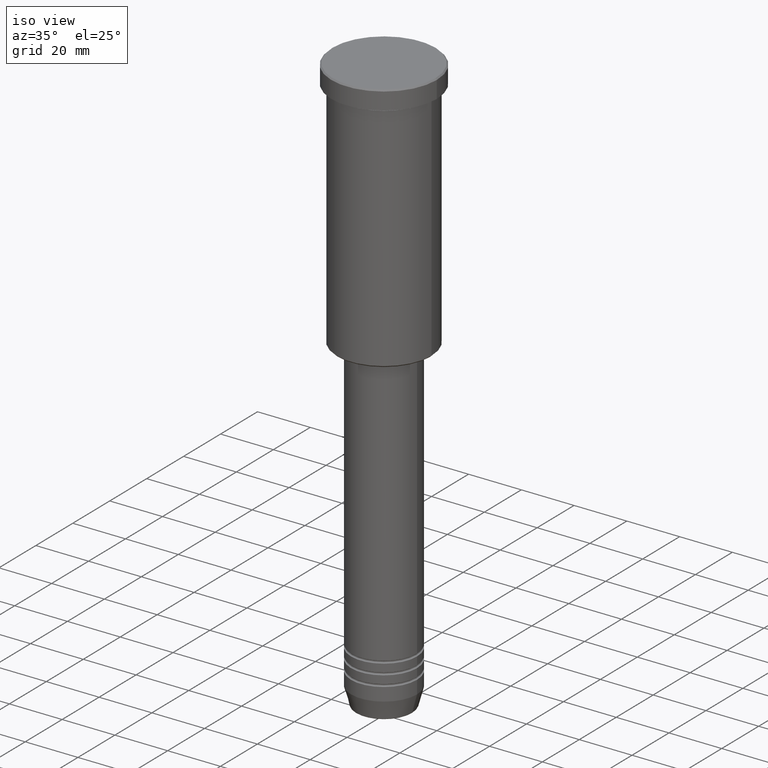
[diagram: clean part render]
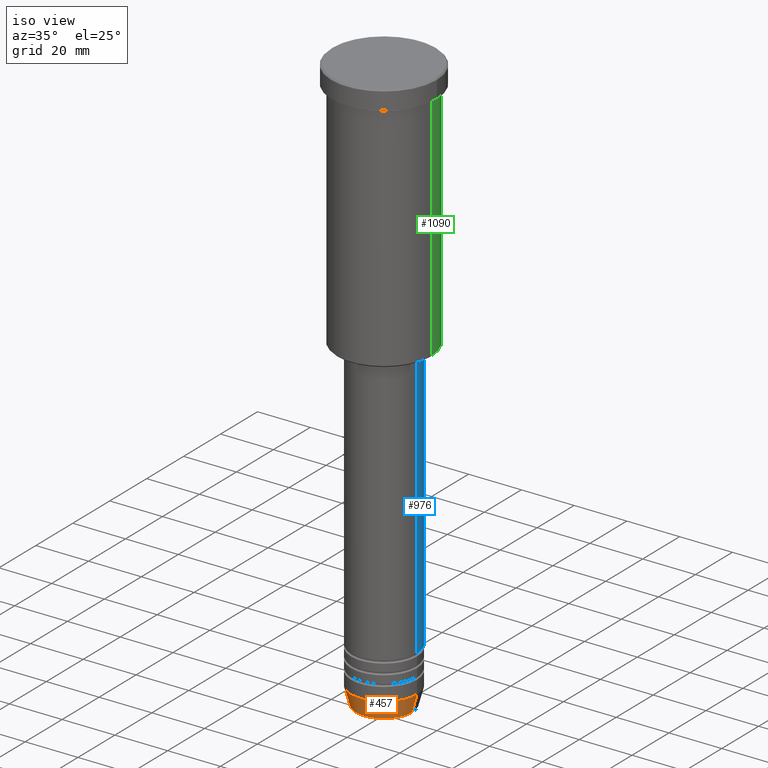
[diagram: same view with three faces highlighted in distinct colors, each labeled with its STEP entity id]
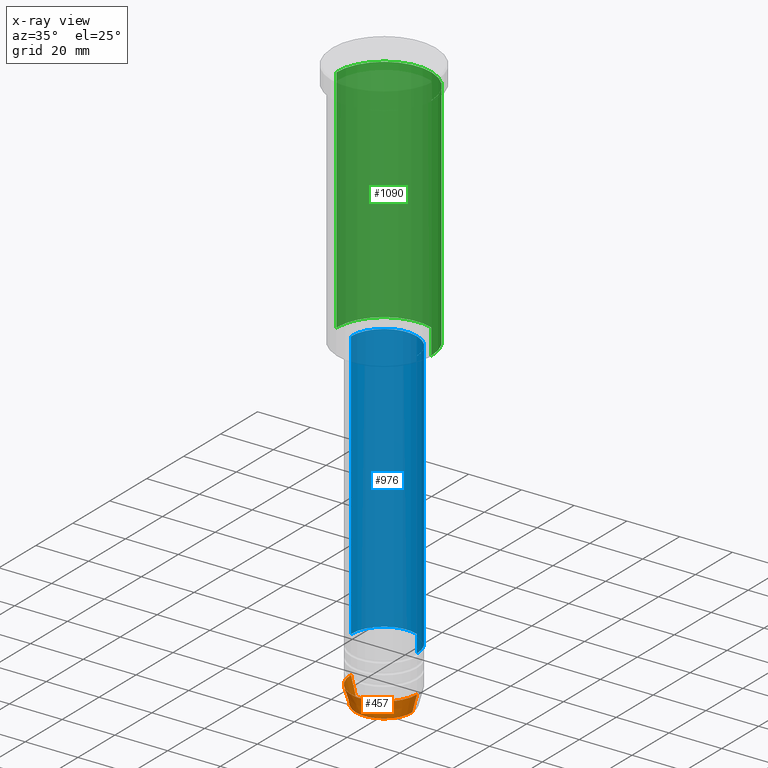
[diagram: x-ray of the same camera — body ghosted, the three highlighted faces saturated]
A machine part, iso view with three faces highlighted in distinct colors.
The next image is the same camera in x-ray (body ghosted, the three faces saturated) — at least one of them is partly hidden behind the body in this view.
Their STEP definitions:

[orange] entity #457 — the highlighted conical surface has half-angle 15 deg.
#1 = ORIENTED_EDGE ( 'NONE', *, *, #250, .T. ) ;
#19 = EDGE_CURVE ( 'NONE', #510, #104, #490, .T. ) ;
#92 = CARTESIAN_POINT ( 'NONE',  ( 0.000000000000000000, 0.000000000000000000, -219.6294095225512422 ) ) ;
#98 = DIRECTION ( 'NONE',  ( -0.000000000000000000, -0.000000000000000000, 1.000000000000000000 ) ) ;
#104 = VERTEX_POINT ( 'NONE', #440 ) ;
#126 = ORIENTED_EDGE ( 'NONE', *, *, #600, .F. ) ;
#149 = VERTEX_POINT ( 'NONE', #688 ) ;
#185 = ORIENTED_EDGE ( 'NONE', *, *, #479, .T. ) ;
#207 = AXIS2_PLACEMENT_3D ( 'NONE', #456, #98, #375 ) ;
#218 = DIRECTION ( 'NONE',  ( -0.2588190451025213501, 3.169619151431772337E-17, 0.9659258262890680902 ) ) ;
#233 = FACE_OUTER_BOUND ( 'NONE', #506, .T. ) ;
#250 = EDGE_CURVE ( 'NONE', #1067, #149, #941, .T. ) ;
#291 = AXIS2_PLACEMENT_3D ( 'NONE', #92, #373, #564 ) ;
#326 = CARTESIAN_POINT ( 'NONE',  ( 10.72365507213719127, 0.000000000000000000, -219.6294095225512422 ) ) ;
#343 = VECTOR ( 'NONE', #1127, 1000.000000000000000 ) ;
#361 = ORIENTED_EDGE ( 'NONE', *, *, #19, .F. ) ;
#363 = VECTOR ( 'NONE', #218, 1000.000000000000000 ) ;
#373 = DIRECTION ( 'NONE',  ( -0.000000000000000000, -0.000000000000000000, 1.000000000000000000 ) ) ;
#375 = DIRECTION ( 'NONE',  ( 1.000000000000000000, 0.000000000000000000, 0.000000000000000000 ) ) ;
#380 = CARTESIAN_POINT ( 'NONE',  ( -12.50000000000000000, 1.530808498934191521E-15, -213.0000000000000000 ) ) ;
#425 = CARTESIAN_POINT ( 'NONE',  ( 0.000000000000000000, 0.000000000000000000, -213.0000000000000000 ) ) ;
#440 = CARTESIAN_POINT ( 'NONE',  ( -12.50000000000000000, 1.530808498934191521E-15, -213.0000000000000000 ) ) ;
#441 = DIRECTION ( 'NONE',  ( -0.000000000000000000, -0.000000000000000000, 1.000000000000000000 ) ) ;
#456 = CARTESIAN_POINT ( 'NONE',  ( 0.000000000000000000, 0.000000000000000000, -213.0000000000000000 ) ) ;
#457 = ADVANCED_FACE ( 'NONE', ( #233 ), #556, .T. ) ;
#479 = EDGE_CURVE ( 'NONE', #510, #1067, #544, .T. ) ;
#490 = LINE ( 'NONE', #380, #363 ) ;
#506 = EDGE_LOOP ( 'NONE', ( #361, #185, #1, #126 ) ) ;
#510 = VERTEX_POINT ( 'NONE', #773 ) ;
#544 = CIRCLE ( 'NONE', #291, 10.72365507213719127 ) ;
#556 = CONICAL_SURFACE ( 'NONE', #707, 12.50000000000000000, 0.2617993877991500740 ) ;
#564 = DIRECTION ( 'NONE',  ( 1.000000000000000000, 0.000000000000000000, 0.000000000000000000 ) ) ;
#586 = DIRECTION ( 'NONE',  ( 1.000000000000000000, 0.000000000000000000, 0.000000000000000000 ) ) ;
#600 = EDGE_CURVE ( 'NONE', #104, #149, #708, .T. ) ;
#688 = CARTESIAN_POINT ( 'NONE',  ( 12.50000000000000000, 0.000000000000000000, -213.0000000000000000 ) ) ;
#707 = AXIS2_PLACEMENT_3D ( 'NONE', #425, #441, #586 ) ;
#708 = CIRCLE ( 'NONE', #207, 12.50000000000000000 ) ;
#773 = CARTESIAN_POINT ( 'NONE',  ( -10.72365507213719127, 1.422038742429750516E-15, -219.6294095225512422 ) ) ;
#841 = CARTESIAN_POINT ( 'NONE',  ( 12.50000000000000000, 0.000000000000000000, -213.0000000000000000 ) ) ;
#941 = LINE ( 'NONE', #841, #343 ) ;
#1067 = VERTEX_POINT ( 'NONE', #326 ) ;
#1127 = DIRECTION ( 'NONE',  ( 0.2588190451025213501, 0.000000000000000000, 0.9659258262890680902 ) ) ;

[blue] entity #976 — the highlighted cylindrical surface (partial cylindrical patch) has radius 12.5 mm, axis along (-0, -0, 1).
#17 = DIRECTION ( 'NONE',  ( -0.000000000000000000, -0.000000000000000000, 1.000000000000000000 ) ) ;
#21 = AXIS2_PLACEMENT_3D ( 'NONE', #862, #319, #599 ) ;
#52 = CARTESIAN_POINT ( 'NONE',  ( -12.50000000000000000, 1.530808498934191521E-15, -198.9999999999999716 ) ) ;
#96 = VERTEX_POINT ( 'NONE', #340 ) ;
#105 = EDGE_CURVE ( 'NONE', #264, #1080, #383, .T. ) ;
#113 = FACE_OUTER_BOUND ( 'NONE', #781, .T. ) ;
#128 = DIRECTION ( 'NONE',  ( -0.000000000000000000, -0.000000000000000000, 1.000000000000000000 ) ) ;
#153 = ORIENTED_EDGE ( 'NONE', *, *, #105, .T. ) ;
#216 = DIRECTION ( 'NONE',  ( -0.000000000000000000, -0.000000000000000000, 1.000000000000000000 ) ) ;
#256 = EDGE_CURVE ( 'NONE', #1080, #96, #565, .T. ) ;
#264 = VERTEX_POINT ( 'NONE', #929 ) ;
#297 = DIRECTION ( 'NONE',  ( 1.000000000000000000, 0.000000000000000000, 0.000000000000000000 ) ) ;
#319 = DIRECTION ( 'NONE',  ( -0.000000000000000000, -0.000000000000000000, 1.000000000000000000 ) ) ;
#340 = CARTESIAN_POINT ( 'NONE',  ( -12.50000000000000000, 1.530808498934191521E-15, -97.00000000000002842 ) ) ;
#381 = CARTESIAN_POINT ( 'NONE',  ( -12.50000000000000000, 1.530808498934191521E-15, 0.000000000000000000 ) ) ;
#383 = CIRCLE ( 'NONE', #21, 12.50000000000000000 ) ;
#552 = ORIENTED_EDGE ( 'NONE', *, *, #912, .F. ) ;
#565 = LINE ( 'NONE', #381, #933 ) ;
#587 = CARTESIAN_POINT ( 'NONE',  ( 12.50000000000000000, 0.000000000000000000, -97.00000000000002842 ) ) ;
#599 = DIRECTION ( 'NONE',  ( 1.000000000000000000, 0.000000000000000000, 0.000000000000000000 ) ) ;
#606 = EDGE_CURVE ( 'NONE', #264, #1111, #920, .T. ) ;
#661 = CARTESIAN_POINT ( 'NONE',  ( 0.000000000000000000, 0.000000000000000000, -97.00000000000002842 ) ) ;
#766 = AXIS2_PLACEMENT_3D ( 'NONE', #828, #17, #297 ) ;
#781 = EDGE_LOOP ( 'NONE', ( #153, #1123, #552, #792 ) ) ;
#792 = ORIENTED_EDGE ( 'NONE', *, *, #606, .F. ) ;
#815 = CIRCLE ( 'NONE', #1057, 12.50000000000000000 ) ;
#828 = CARTESIAN_POINT ( 'NONE',  ( 0.000000000000000000, 0.000000000000000000, 0.000000000000000000 ) ) ;
#837 = VECTOR ( 'NONE', #1100, 1000.000000000000000 ) ;
#862 = CARTESIAN_POINT ( 'NONE',  ( 0.000000000000000000, 0.000000000000000000, -198.9999999999999716 ) ) ;
#912 = EDGE_CURVE ( 'NONE', #1111, #96, #815, .T. ) ;
#920 = LINE ( 'NONE', #1180, #837 ) ;
#929 = CARTESIAN_POINT ( 'NONE',  ( 12.50000000000000000, 0.000000000000000000, -198.9999999999999716 ) ) ;
#933 = VECTOR ( 'NONE', #128, 1000.000000000000000 ) ;
#976 = ADVANCED_FACE ( 'NONE', ( #113 ), #1012, .T. ) ;
#1010 = DIRECTION ( 'NONE',  ( 1.000000000000000000, 0.000000000000000000, 0.000000000000000000 ) ) ;
#1012 = CYLINDRICAL_SURFACE ( 'NONE', #766, 12.50000000000000000 ) ;
#1057 = AXIS2_PLACEMENT_3D ( 'NONE', #661, #216, #1010 ) ;
#1080 = VERTEX_POINT ( 'NONE', #52 ) ;
#1100 = DIRECTION ( 'NONE',  ( -0.000000000000000000, -0.000000000000000000, 1.000000000000000000 ) ) ;
#1111 = VERTEX_POINT ( 'NONE', #587 ) ;
#1123 = ORIENTED_EDGE ( 'NONE', *, *, #256, .T. ) ;
#1180 = CARTESIAN_POINT ( 'NONE',  ( 12.50000000000000000, 0.000000000000000000, 0.000000000000000000 ) ) ;

[green] entity #1090 — the highlighted cylindrical surface (partial cylindrical patch) has radius 18 mm, axis along (-0, -0, 1).
#13 = DIRECTION ( 'NONE',  ( -0.000000000000000000, -0.000000000000000000, 1.000000000000000000 ) ) ;
#30 = VERTEX_POINT ( 'NONE', #1166 ) ;
#89 = AXIS2_PLACEMENT_3D ( 'NONE', #809, #271, #889 ) ;
#131 = CARTESIAN_POINT ( 'NONE',  ( 0.000000000000000000, 0.000000000000000000, 0.000000000000000000 ) ) ;
#167 = CARTESIAN_POINT ( 'NONE',  ( -18.00000000000000000, 2.204364238465235428E-15, -95.49999999999998579 ) ) ;
#171 = LINE ( 'NONE', #608, #592 ) ;
#223 = VERTEX_POINT ( 'NONE', #831 ) ;
#271 = DIRECTION ( 'NONE',  ( -0.000000000000000000, -0.000000000000000000, 1.000000000000000000 ) ) ;
#300 = CARTESIAN_POINT ( 'NONE',  ( 0.000000000000000000, 0.000000000000000000, -7.999999999999996447 ) ) ;
#307 = DIRECTION ( 'NONE',  ( 1.000000000000000000, 0.000000000000000000, 0.000000000000000000 ) ) ;
#341 = ORIENTED_EDGE ( 'NONE', *, *, #736, .T. ) ;
#470 = CARTESIAN_POINT ( 'NONE',  ( 18.00000000000000000, 0.000000000000000000, 0.000000000000000000 ) ) ;
#472 = EDGE_LOOP ( 'NONE', ( #603, #341, #805, #686 ) ) ;
#592 = VECTOR ( 'NONE', #915, 1000.000000000000000 ) ;
#603 = ORIENTED_EDGE ( 'NONE', *, *, #767, .T. ) ;
#608 = CARTESIAN_POINT ( 'NONE',  ( -18.00000000000000000, 2.204364238465235428E-15, 0.000000000000000000 ) ) ;
#633 = VERTEX_POINT ( 'NONE', #916 ) ;
#686 = ORIENTED_EDGE ( 'NONE', *, *, #949, .F. ) ;
#692 = DIRECTION ( 'NONE',  ( -0.000000000000000000, -0.000000000000000000, 1.000000000000000000 ) ) ;
#736 = EDGE_CURVE ( 'NONE', #1175, #633, #171, .T. ) ;
#767 = EDGE_CURVE ( 'NONE', #30, #1175, #857, .T. ) ;
#770 = DIRECTION ( 'NONE',  ( 1.000000000000000000, 0.000000000000000000, 0.000000000000000000 ) ) ;
#805 = ORIENTED_EDGE ( 'NONE', *, *, #1046, .F. ) ;
#809 = CARTESIAN_POINT ( 'NONE',  ( 0.000000000000000000, 0.000000000000000000, -95.49999999999998579 ) ) ;
#831 = CARTESIAN_POINT ( 'NONE',  ( 18.00000000000000000, 0.000000000000000000, -7.999999999999996447 ) ) ;
#857 = CIRCLE ( 'NONE', #89, 18.00000000000000000 ) ;
#863 = AXIS2_PLACEMENT_3D ( 'NONE', #300, #692, #770 ) ;
#889 = DIRECTION ( 'NONE',  ( -1.000000000000000000, 0.000000000000000000, 0.000000000000000000 ) ) ;
#906 = CIRCLE ( 'NONE', #863, 18.00000000000000000 ) ;
#915 = DIRECTION ( 'NONE',  ( -0.000000000000000000, -0.000000000000000000, 1.000000000000000000 ) ) ;
#916 = CARTESIAN_POINT ( 'NONE',  ( -18.00000000000000000, 2.204364238465235428E-15, -7.999999999999996447 ) ) ;
#924 = VECTOR ( 'NONE', #13, 1000.000000000000000 ) ;
#937 = AXIS2_PLACEMENT_3D ( 'NONE', #131, #1131, #307 ) ;
#949 = EDGE_CURVE ( 'NONE', #30, #223, #1119, .T. ) ;
#1039 = CYLINDRICAL_SURFACE ( 'NONE', #937, 18.00000000000000000 ) ;
#1046 = EDGE_CURVE ( 'NONE', #223, #633, #906, .T. ) ;
#1055 = FACE_OUTER_BOUND ( 'NONE', #472, .T. ) ;
#1090 = ADVANCED_FACE ( 'NONE', ( #1055 ), #1039, .T. ) ;
#1119 = LINE ( 'NONE', #470, #924 ) ;
#1131 = DIRECTION ( 'NONE',  ( -0.000000000000000000, -0.000000000000000000, 1.000000000000000000 ) ) ;
#1166 = CARTESIAN_POINT ( 'NONE',  ( 18.00000000000000000, 0.000000000000000000, -95.49999999999998579 ) ) ;
#1175 = VERTEX_POINT ( 'NONE', #167 ) ;